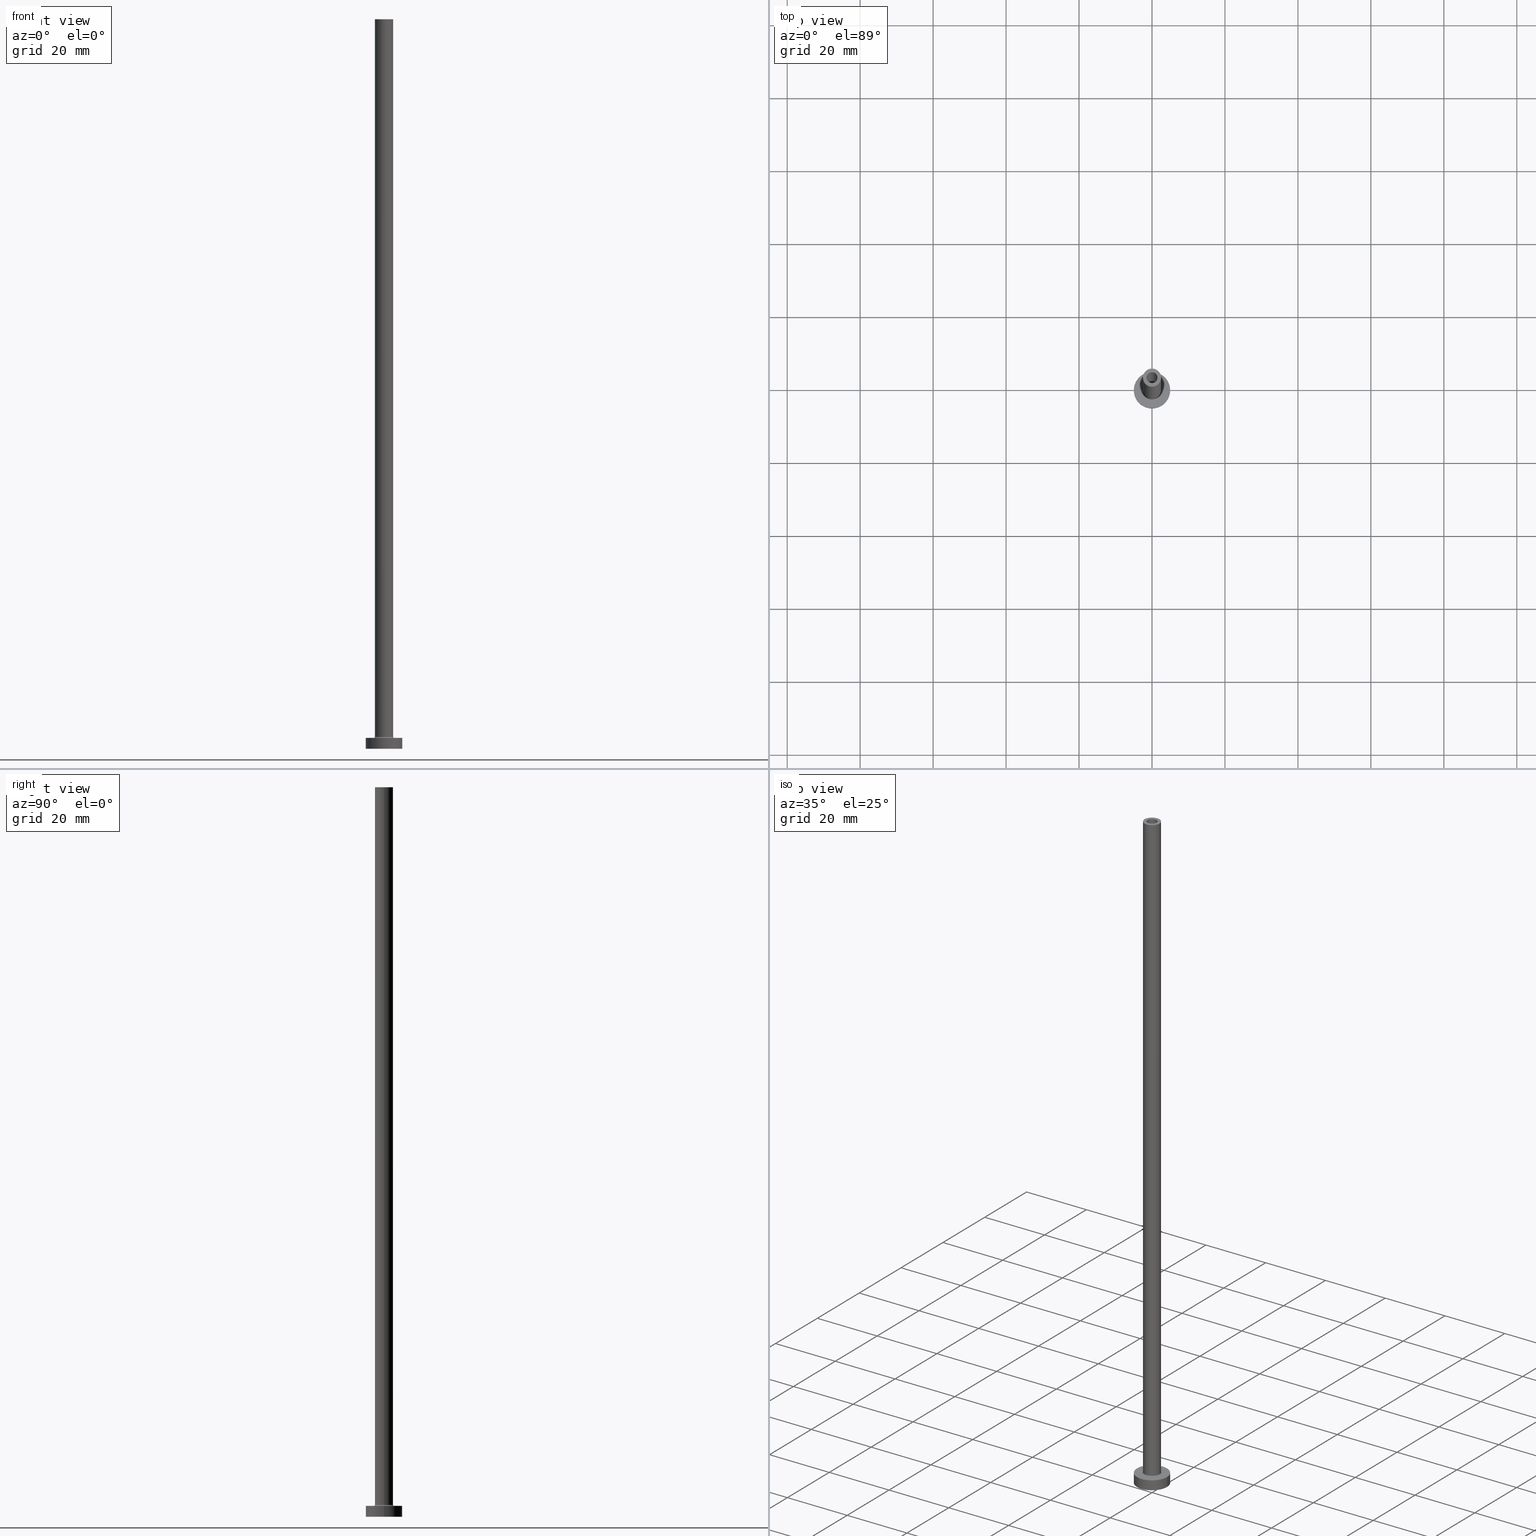
[diagram: canonical four-view strip — front | top / right | iso, engineering-drawing reading convention]
A machine part, canonical four-view strip (front | top / right | iso — engineering-drawing reading convention). The complete STEP part file that produces these views, byte-faithful:
ISO-10303-21;
HEADER;
FILE_DESCRIPTION (( 'STEP AP203' ),
    '1' );
FILE_NAME ('721f.STEP',
    '2023-02-13T18:01:36',
    ( '' ),
    ( '' ),
    'SwSTEP 2.0',
    'SolidWorks 2019',
    '' );
FILE_SCHEMA (( 'CONFIG_CONTROL_DESIGN' ));
ENDSEC;

DATA;
#1 = LINE ( 'NONE', #387, #257 ) ;
#2 = AXIS2_PLACEMENT_3D ( 'NONE', #383, #137, #210 ) ;
#3 = CC_DESIGN_APPROVAL ( #299, ( #334 ) ) ;
#4 = CARTESIAN_POINT ( 'NONE',  ( 0.000000000000000000, 0.000000000000000000, 200.0000000000000000 ) ) ;
#5 = PLANE ( 'NONE',  #280 ) ;
#6 = VERTEX_POINT ( 'NONE', #418 ) ;
#7 = DIRECTION ( 'NONE',  ( 1.000000000000000000, 0.000000000000000000, 0.000000000000000000 ) ) ;
#8 = CARTESIAN_POINT ( 'NONE',  ( 1.500000000000000222, 1.836970198721029934E-16, 155.0000000000000284 ) ) ;
#9 = DIRECTION ( 'NONE',  ( 0.000000000000000000, 0.000000000000000000, 1.000000000000000000 ) ) ;
#10 = ORIENTED_EDGE ( 'NONE', *, *, #12, .T. ) ;
#11 = AXIS2_PLACEMENT_3D ( 'NONE', #142, #225, #390 ) ;
#12 = EDGE_CURVE ( 'NONE', #100, #67, #64, .T. ) ;
#13 = DIRECTION ( 'NONE',  ( 0.000000000000000000, 0.000000000000000000, 1.000000000000000000 ) ) ;
#14 = ORIENTED_EDGE ( 'NONE', *, *, #48, .T. ) ;
#15 = EDGE_LOOP ( 'NONE', ( #78, #433, #50, #451 ) ) ;
#16 =( LENGTH_UNIT ( ) NAMED_UNIT ( * ) SI_UNIT ( .MILLI., .METRE. ) );
#17 = CC_DESIGN_PERSON_AND_ORGANIZATION_ASSIGNMENT ( #363, #439, ( #455 ) ) ;
#18 = CIRCLE ( 'NONE', #273, 2.500000000000000000 ) ;
#19 = DATE_AND_TIME ( #54, #139 ) ;
#20 = ORIENTED_EDGE ( 'NONE', *, *, #358, .T. ) ;
#21 = PERSON_AND_ORGANIZATION_ROLE ( 'creator' ) ;
#22 = PERSON_AND_ORGANIZATION ( #180, #365 ) ;
#23 = ORIENTED_EDGE ( 'NONE', *, *, #294, .F. ) ;
#24 = ORIENTED_EDGE ( 'NONE', *, *, #372, .T. ) ;
#25 = EDGE_CURVE ( 'NONE', #460, #264, #157, .T. ) ;
#26 = EDGE_LOOP ( 'NONE', ( #356, #406, #149, #131 ) ) ;
#27 = CARTESIAN_POINT ( 'NONE',  ( 2.799999999999999822, 0.000000000000000000, 2.999999999999998668 ) ) ;
#28 = ORIENTED_EDGE ( 'NONE', *, *, #233, .F. ) ;
#29 = DIRECTION ( 'NONE',  ( -0.000000000000000000, -0.000000000000000000, -1.000000000000000000 ) ) ;
#30 = VECTOR ( 'NONE', #58, 1000.000000000000000 ) ;
#31 = MANIFOLD_SOLID_BREP ( 'Odebrat vysunut�m4', #146 ) ;
#32 = DIRECTION ( 'NONE',  ( 0.000000000000000000, 0.000000000000000000, -1.000000000000000000 ) ) ;
#33 = ADVANCED_FACE ( 'NONE', ( #103, #249 ), #246, .F. ) ;
#34 = CARTESIAN_POINT ( 'NONE',  ( 5.000000000000000000, 6.123233995736766282E-16, 3.000000000000000000 ) ) ;
#35 = CARTESIAN_POINT ( 'NONE',  ( 0.000000000000000000, 0.000000000000000000, 200.0000000000000000 ) ) ;
#36 = FACE_OUTER_BOUND ( 'NONE', #254, .T. ) ;
#37 = DIRECTION ( 'NONE',  ( 0.000000000000000000, -1.000000000000000000, 0.000000000000000000 ) ) ;
#38 = CIRCLE ( 'NONE', #447, 1.650000000000000133 ) ;
#39 = DIRECTION ( 'NONE',  ( 0.000000000000000000, 0.000000000000000000, -1.000000000000000000 ) ) ;
#40 = CARTESIAN_POINT ( 'NONE',  ( 0.000000000000000000, 0.000000000000000000, 0.000000000000000000 ) ) ;
#41 = FACE_OUTER_BOUND ( 'NONE', #15, .T. ) ;
#42 = CC_DESIGN_PERSON_AND_ORGANIZATION_ASSIGNMENT ( #335, #159, ( #382 ) ) ;
#43 = DIRECTION ( 'NONE',  ( 1.000000000000000000, 0.000000000000000000, 0.000000000000000000 ) ) ;
#44 = ORIENTED_EDGE ( 'NONE', *, *, #117, .F. ) ;
#45 = LINE ( 'NONE', #147, #209 ) ;
#46 = ORIENTED_EDGE ( 'NONE', *, *, #269, .F. ) ;
#47 = AXIS2_PLACEMENT_3D ( 'NONE', #313, #182, #60 ) ;
#48 = EDGE_CURVE ( 'NONE', #69, #86, #18, .T. ) ;
#49 = FACE_OUTER_BOUND ( 'NONE', #386, .T. ) ;
#50 = ORIENTED_EDGE ( 'NONE', *, *, #118, .T. ) ;
#51 =( NAMED_UNIT ( * ) SI_UNIT ( $, .STERADIAN. ) SOLID_ANGLE_UNIT ( ) );
#52 = EDGE_CURVE ( 'NONE', #86, #67, #181, .T. ) ;
#53 = APPROVAL_ROLE ( '' ) ;
#54 = CALENDAR_DATE ( 2023, 13, 2 ) ;
#55 = AXIS2_PLACEMENT_3D ( 'NONE', #412, #458, #134 ) ;
#56 = CC_DESIGN_SECURITY_CLASSIFICATION ( #334, ( #382 ) ) ;
#57 = CARTESIAN_POINT ( 'NONE',  ( -2.500000000000000000, 0.000000000000000000, 200.0000000000000000 ) ) ;
#58 = DIRECTION ( 'NONE',  ( 0.000000000000000000, 0.000000000000000000, -1.000000000000000000 ) ) ;
#59 = DIRECTION ( 'NONE',  ( -0.000000000000000000, -0.000000000000000000, -1.000000000000000000 ) ) ;
#60 = DIRECTION ( 'NONE',  ( 1.000000000000000000, 0.000000000000000000, 0.000000000000000000 ) ) ;
#61 = ADVANCED_FACE ( 'NONE', ( #272 ), #411, .T. ) ;
#62 = DIRECTION ( 'NONE',  ( 1.000000000000000000, 0.000000000000000000, 0.000000000000000000 ) ) ;
#63 = CARTESIAN_POINT ( 'NONE',  ( 1.500000000000000222, 1.836970198721029934E-16, 200.0000000000000000 ) ) ;
#64 = CIRCLE ( 'NONE', #461, 2.500000000000000000 ) ;
#65 = CYLINDRICAL_SURFACE ( 'NONE', #138, 5.000000000000000000 ) ;
#66 = CARTESIAN_POINT ( 'NONE',  ( 0.000000000000000000, 0.000000000000000000, 200.0000000000000000 ) ) ;
#67 = VERTEX_POINT ( 'NONE', #305 ) ;
#68 = LINE ( 'NONE', #167, #83 ) ;
#69 = VERTEX_POINT ( 'NONE', #337 ) ;
#70 = PLANE ( 'NONE',  #102 ) ;
#71 = DIRECTION ( 'NONE',  ( -0.000000000000000000, -0.000000000000000000, -1.000000000000000000 ) ) ;
#72 = DIRECTION ( 'NONE',  ( -1.000000000000000000, 1.224646799147353207E-16, 0.000000000000000000 ) ) ;
#73 = AXIS2_PLACEMENT_3D ( 'NONE', #286, #230, #113 ) ;
#74 = APPLICATION_PROTOCOL_DEFINITION ( 'international standard', 'config_control_design', 1994, #228 ) ;
#75 = EDGE_LOOP ( 'NONE', ( #196, #152 ) ) ;
#76 = EDGE_CURVE ( 'NONE', #391, #115, #171, .T. ) ;
#77 = CARTESIAN_POINT ( 'NONE',  ( 0.000000000000000000, 0.000000000000000000, 200.0000000000000000 ) ) ;
#78 = ORIENTED_EDGE ( 'NONE', *, *, #104, .F. ) ;
#79 = COORDINATED_UNIVERSAL_TIME_OFFSET ( 1, 0, .AHEAD. ) ;
#80 = EDGE_LOOP ( 'NONE', ( #90, #185 ) ) ;
#81 = CARTESIAN_POINT ( 'NONE',  ( 0.000000000000000000, 0.000000000000000000, 155.0000000000000284 ) ) ;
#82 = CALENDAR_DATE ( 2023, 13, 2 ) ;
#83 = VECTOR ( 'NONE', #416, 1000.000000000000000 ) ;
#84 = ORIENTED_EDGE ( 'NONE', *, *, #52, .T. ) ;
#85 = CC_DESIGN_APPROVAL ( #262, ( #382 ) ) ;
#86 = VERTEX_POINT ( 'NONE', #340 ) ;
#87 = ADVANCED_FACE ( 'NONE', ( #170 ), #65, .T. ) ;
#88 = EDGE_CURVE ( 'NONE', #220, #361, #45, .T. ) ;
#89 = DATE_AND_TIME ( #82, #435 ) ;
#90 = ORIENTED_EDGE ( 'NONE', *, *, #25, .F. ) ;
#91 = APPROVAL_STATUS ( 'not_yet_approved' ) ;
#92 = APPROVAL_PERSON_ORGANIZATION ( #261, #400, #395 ) ;
#93 = EDGE_LOOP ( 'NONE', ( #285, #328, #449, #444 ) ) ;
#94 = ORIENTED_EDGE ( 'NONE', *, *, #160, .F. ) ;
#95 = ADVANCED_FACE ( 'NONE', ( #184, #429 ), #5, .F. ) ;
#96 = CIRCLE ( 'NONE', #128, 1.500000000000000222 ) ;
#97 = CARTESIAN_POINT ( 'NONE',  ( 0.000000000000000000, 0.000000000000000000, 159.6669047558312400 ) ) ;
#98 = DIRECTION ( 'NONE',  ( 0.000000000000000000, 0.000000000000000000, 1.000000000000000000 ) ) ;
#99 = DIRECTION ( 'NONE',  ( -0.000000000000000000, -0.000000000000000000, -1.000000000000000000 ) ) ;
#100 = VERTEX_POINT ( 'NONE', #324 ) ;
#101 = CARTESIAN_POINT ( 'NONE',  ( 0.000000000000000000, 0.000000000000000000, 3.299999999999997158 ) ) ;
#102 = AXIS2_PLACEMENT_3D ( 'NONE', #77, #397, #223 ) ;
#103 = FACE_BOUND ( 'NONE', #200, .T. ) ;
#104 = EDGE_CURVE ( 'NONE', #67, #266, #199, .T. ) ;
#105 = CYLINDRICAL_SURFACE ( 'NONE', #165, 1.500000000000000222 ) ;
#106 = PLANE ( 'NONE',  #238 ) ;
#107 = CARTESIAN_POINT ( 'NONE',  ( 0.000000000000000000, 0.000000000000000000, 3.000000000000000000 ) ) ;
#108 = DIRECTION ( 'NONE',  ( 1.224646799147353207E-16, 1.000000000000000000, -0.000000000000000000 ) ) ;
#109 = CARTESIAN_POINT ( 'NONE',  ( 0.000000000000000000, 0.000000000000000000, 155.0000000000000284 ) ) ;
#110 = FACE_OUTER_BOUND ( 'NONE', #191, .T. ) ;
#111 = CIRCLE ( 'NONE', #414, 5.000000000000000000 ) ;
#112 = LOCAL_TIME ( 19, 1, 36.00000000000000000, #79 ) ;
#113 = DIRECTION ( 'NONE',  ( 1.000000000000000000, 0.000000000000000000, 0.000000000000000000 ) ) ;
#114 = CARTESIAN_POINT ( 'NONE',  ( -1.650000000000000133, 0.000000000000000000, 0.000000000000000000 ) ) ;
#115 = VERTEX_POINT ( 'NONE', #114 ) ;
#116 = CARTESIAN_POINT ( 'NONE',  ( 0.000000000000000000, 0.000000000000000000, 155.0000000000000284 ) ) ;
#117 = EDGE_CURVE ( 'NONE', #236, #220, #247, .T. ) ;
#118 = EDGE_CURVE ( 'NONE', #100, #231, #369, .T. ) ;
#119 = CIRCLE ( 'NONE', #164, 2.799999999999999822 ) ;
#120 = ADVANCED_FACE ( 'NONE', ( #255, #357 ), #106, .T. ) ;
#121 = APPROVAL_ROLE ( '' ) ;
#122 = CC_DESIGN_PERSON_AND_ORGANIZATION_ASSIGNMENT ( #22, #21, ( #382 ) ) ;
#123 = AXIS2_PLACEMENT_3D ( 'NONE', #177, #378, #453 ) ;
#124 = AXIS2_PLACEMENT_3D ( 'NONE', #325, #71, #218 ) ;
#125 = ORIENTED_EDGE ( 'NONE', *, *, #358, .F. ) ;
#126 = APPROVAL_DATE_TIME ( #235, #299 ) ;
#127 = ORIENTED_EDGE ( 'NONE', *, *, #194, .T. ) ;
#128 = AXIS2_PLACEMENT_3D ( 'NONE', #389, #427, #43 ) ;
#129 = DIRECTION ( 'NONE',  ( 1.000000000000000000, 0.000000000000000000, 0.000000000000000000 ) ) ;
#130 = CYLINDRICAL_SURFACE ( 'NONE', #381, 2.500000000000000000 ) ;
#131 = ORIENTED_EDGE ( 'NONE', *, *, #232, .F. ) ;
#132 = DIRECTION ( 'NONE',  ( 1.000000000000000000, 0.000000000000000000, -0.000000000000000000 ) ) ;
#133 = EDGE_CURVE ( 'NONE', #361, #6, #111, .T. ) ;
#134 = DIRECTION ( 'NONE',  ( -1.000000000000000000, 0.000000000000000000, 0.000000000000000000 ) ) ;
#135 = PRODUCT_RELATED_PRODUCT_CATEGORY ( 'detail', '', ( #179 ) ) ;
#136 = CARTESIAN_POINT ( 'NONE',  ( 0.000000000000000000, 0.000000000000000000, 3.299999999999997158 ) ) ;
#137 = DIRECTION ( 'NONE',  ( 0.000000000000000000, 0.000000000000000000, 1.000000000000000000 ) ) ;
#138 = AXIS2_PLACEMENT_3D ( 'NONE', #144, #360, #316 ) ;
#139 = LOCAL_TIME ( 19, 1, 36.00000000000000000, #450 ) ;
#140 = FACE_BOUND ( 'NONE', #80, .T. ) ;
#141 = LINE ( 'NONE', #415, #401 ) ;
#142 = CARTESIAN_POINT ( 'NONE',  ( 0.000000000000000000, 0.000000000000000000, 3.000000000000000000 ) ) ;
#143 = DIRECTION ( 'NONE',  ( 1.000000000000000000, 0.000000000000000000, 0.000000000000000000 ) ) ;
#144 = CARTESIAN_POINT ( 'NONE',  ( 0.000000000000000000, 0.000000000000000000, 3.000000000000000000 ) ) ;
#145 = EDGE_LOOP ( 'NONE', ( #258, #168 ) ) ;
#146 = CLOSED_SHELL ( 'NONE', ( #329, #208, #256, #452, #61, #87, #120, #33, #312, #169, #188, #198, #95, #321 ) ) ;
#147 = CARTESIAN_POINT ( 'NONE',  ( 5.000000000000000000, 6.123233995736766282E-16, 3.000000000000000000 ) ) ;
#148 = AXIS2_PLACEMENT_3D ( 'NONE', #346, #241, #205 ) ;
#149 = ORIENTED_EDGE ( 'NONE', *, *, #133, .T. ) ;
#150 = CALENDAR_DATE ( 2023, 13, 2 ) ;
#151 = DIRECTION ( 'NONE',  ( 1.000000000000000000, 0.000000000000000000, 0.000000000000000000 ) ) ;
#152 = ORIENTED_EDGE ( 'NONE', *, *, #297, .T. ) ;
#153 = CARTESIAN_POINT ( 'NONE',  ( 5.000000000000000000, 6.123233995736766282E-16, 0.000000000000000000 ) ) ;
#154 = VERTEX_POINT ( 'NONE', #8 ) ;
#155 = ORIENTED_EDGE ( 'NONE', *, *, #295, .F. ) ;
#156 = COORDINATED_UNIVERSAL_TIME_OFFSET ( 1, 0, .AHEAD. ) ;
#157 = CIRCLE ( 'NONE', #413, 1.500000000000000222 ) ;
#158 = AXIS2_PLACEMENT_3D ( 'NONE', #287, #37, #39 ) ;
#159 = PERSON_AND_ORGANIZATION_ROLE ( 'design_supplier' ) ;
#160 = EDGE_CURVE ( 'NONE', #310, #391, #1, .T. ) ;
#161 = APPROVAL_DATE_TIME ( #405, #262 ) ;
#162 = ORIENTED_EDGE ( 'NONE', *, *, #269, .T. ) ;
#163 = AXIS2_PLACEMENT_3D ( 'NONE', #349, #343, #132 ) ;
#164 = AXIS2_PLACEMENT_3D ( 'NONE', #107, #402, #7 ) ;
#165 = AXIS2_PLACEMENT_3D ( 'NONE', #66, #32, #250 ) ;
#166 = DIRECTION ( 'NONE',  ( -0.000000000000000000, -0.000000000000000000, -1.000000000000000000 ) ) ;
#167 = CARTESIAN_POINT ( 'NONE',  ( 1.500000000000000222, 1.836970198721029934E-16, 200.0000000000000000 ) ) ;
#168 = ORIENTED_EDGE ( 'NONE', *, *, #133, .F. ) ;
#169 = ADVANCED_FACE ( 'NONE', ( #140, #110 ), #70, .T. ) ;
#170 = FACE_OUTER_BOUND ( 'NONE', #336, .T. ) ;
#171 = CIRCLE ( 'NONE', #333, 1.650000000000000133 ) ;
#172 = CARTESIAN_POINT ( 'NONE',  ( -1.500000000000000222, 0.000000000000000000, 155.0000000000000284 ) ) ;
#173 = CC_DESIGN_APPROVAL ( #400, ( #455 ) ) ;
#174 = ORIENTED_EDGE ( 'NONE', *, *, #194, .F. ) ;
#175 = CYLINDRICAL_SURFACE ( 'NONE', #55, 1.500000000000000222 ) ;
#176 = EDGE_LOOP ( 'NONE', ( #300, #318, #222, #366 ) ) ;
#177 = CARTESIAN_POINT ( 'NONE',  ( 0.000000000000000000, 0.000000000000000000, 3.000000000000000000 ) ) ;
#178 = ORIENTED_EDGE ( 'NONE', *, *, #339, .T. ) ;
#179 = PRODUCT ( '721f', '721f', '', ( #319 ) ) ;
#180 = PERSON ( 'NEUR�EN�', 'NEUR�EN�', 'NEUR�EN�', ('NEUR�EN�'), ('NEUR�EN�'), ('NEUR�EN�') ) ;
#181 = LINE ( 'NONE', #57, #421 ) ;
#182 = DIRECTION ( 'NONE',  ( 0.000000000000000000, 0.000000000000000000, 1.000000000000000000 ) ) ;
#183 = AXIS2_PLACEMENT_3D ( 'NONE', #282, #426, #263 ) ;
#184 = FACE_BOUND ( 'NONE', #237, .T. ) ;
#185 = ORIENTED_EDGE ( 'NONE', *, *, #372, .F. ) ;
#186 =( NAMED_UNIT ( * ) PLANE_ANGLE_UNIT ( ) SI_UNIT ( $, .RADIAN. ) );
#187 = CARTESIAN_POINT ( 'NONE',  ( 0.000000000000000000, 0.000000000000000000, 3.000000000000000000 ) ) ;
#188 = ADVANCED_FACE ( 'NONE', ( #41 ), #364, .F. ) ;
#189 = DIRECTION ( 'NONE',  ( 0.000000000000000000, 0.000000000000000000, 1.000000000000000000 ) ) ;
#190 = DIRECTION ( 'NONE',  ( 0.000000000000000000, 0.000000000000000000, 1.000000000000000000 ) ) ;
#191 = EDGE_LOOP ( 'NONE', ( #352, #14 ) ) ;
#192 = DIRECTION ( 'NONE',  ( -0.000000000000000000, -0.000000000000000000, -1.000000000000000000 ) ) ;
#193 = ORIENTED_EDGE ( 'NONE', *, *, #420, .T. ) ;
#194 = EDGE_CURVE ( 'NONE', #304, #154, #307, .T. ) ;
#195 = CARTESIAN_POINT ( 'NONE',  ( -1.500000000000000222, 0.000000000000000000, 200.0000000000000000 ) ) ;
#196 = ORIENTED_EDGE ( 'NONE', *, *, #342, .T. ) ;
#197 = APPLICATION_CONTEXT ( 'configuration controlled 3d designs of mechanical parts and assemblies' ) ;
#198 = ADVANCED_FACE ( 'NONE', ( #217 ), #320, .F. ) ;
#199 = CIRCLE ( 'NONE', #290, 0.2999999999999999334 ) ;
#200 = EDGE_LOOP ( 'NONE', ( #125, #323 ) ) ;
#201 = SHAPE_DEFINITION_REPRESENTATION ( #388, #213 ) ;
#202 = VECTOR ( 'NONE', #99, 1000.000000000000000 ) ;
#203 = LOCAL_TIME ( 19, 1, 36.00000000000000000, #446 ) ;
#204 = DATE_TIME_ROLE ( 'creation_date' ) ;
#205 = DIRECTION ( 'NONE',  ( -1.000000000000000000, 0.000000000000000000, 0.000000000000000000 ) ) ;
#206 = CARTESIAN_POINT ( 'NONE',  ( 0.000000000000000000, 0.000000000000000000, 155.0000000000000284 ) ) ;
#207 = DIRECTION ( 'NONE',  ( 1.000000000000000000, 0.000000000000000000, 0.000000000000000000 ) ) ;
#208 = ADVANCED_FACE ( 'NONE', ( #350 ), #279, .F. ) ;
#209 = VECTOR ( 'NONE', #192, 1000.000000000000000 ) ;
#210 = DIRECTION ( 'NONE',  ( 1.000000000000000000, 0.000000000000000000, 0.000000000000000000 ) ) ;
#211 = DIRECTION ( 'NONE',  ( 0.000000000000000000, 0.000000000000000000, 1.000000000000000000 ) ) ;
#212 = EDGE_CURVE ( 'NONE', #310, #288, #38, .T. ) ;
#213 = ADVANCED_BREP_SHAPE_REPRESENTATION ( '721f', ( #31, #308 ), #302 ) ;
#214 = DIRECTION ( 'NONE',  ( 0.000000000000000000, 0.000000000000000000, -1.000000000000000000 ) ) ;
#215 = DESIGN_CONTEXT ( 'detailed design', #197, 'design' ) ;
#216 = LINE ( 'NONE', #306, #202 ) ;
#217 = FACE_OUTER_BOUND ( 'NONE', #430, .T. ) ;
#218 = DIRECTION ( 'NONE',  ( -1.000000000000000000, 0.000000000000000000, 0.000000000000000000 ) ) ;
#219 = CIRCLE ( 'NONE', #123, 5.000000000000000000 ) ;
#220 = VERTEX_POINT ( 'NONE', #34 ) ;
#221 = DIRECTION ( 'NONE',  ( 0.000000000000000000, 0.000000000000000000, 1.000000000000000000 ) ) ;
#222 = ORIENTED_EDGE ( 'NONE', *, *, #342, .F. ) ;
#223 = DIRECTION ( 'NONE',  ( 1.000000000000000000, 0.000000000000000000, -0.000000000000000000 ) ) ;
#224 = DIRECTION ( 'NONE',  ( 0.000000000000000000, 0.000000000000000000, -1.000000000000000000 ) ) ;
#225 = DIRECTION ( 'NONE',  ( 0.000000000000000000, 0.000000000000000000, 1.000000000000000000 ) ) ;
#226 = EDGE_LOOP ( 'NONE', ( #438, #408 ) ) ;
#227 = EDGE_CURVE ( 'NONE', #220, #236, #219, .T. ) ;
#228 = APPLICATION_CONTEXT ( 'configuration controlled 3d designs of mechanical parts and assemblies' ) ;
#229 = CIRCLE ( 'NONE', #73, 1.650000000000000133 ) ;
#230 = DIRECTION ( 'NONE',  ( -0.000000000000000000, -0.000000000000000000, -1.000000000000000000 ) ) ;
#231 = VERTEX_POINT ( 'NONE', #27 ) ;
#232 = EDGE_CURVE ( 'NONE', #236, #6, #141, .T. ) ;
#233 = EDGE_CURVE ( 'NONE', #264, #154, #68, .T. ) ;
#234 = PERSON_AND_ORGANIZATION_ROLE ( 'classification_officer' ) ;
#235 = DATE_AND_TIME ( #373, #203 ) ;
#236 = VERTEX_POINT ( 'NONE', #239 ) ;
#237 = EDGE_LOOP ( 'NONE', ( #127, #193 ) ) ;
#238 = AXIS2_PLACEMENT_3D ( 'NONE', #187, #13, #259 ) ;
#239 = CARTESIAN_POINT ( 'NONE',  ( -5.000000000000000000, 0.000000000000000000, 3.000000000000000000 ) ) ;
#240 = ORIENTED_EDGE ( 'NONE', *, *, #48, .F. ) ;
#241 = DIRECTION ( 'NONE',  ( -0.000000000000000000, -0.000000000000000000, -1.000000000000000000 ) ) ;
#242 = DIRECTION ( 'NONE',  ( -1.000000000000000000, 0.000000000000000000, 0.000000000000000000 ) ) ;
#243 = EDGE_CURVE ( 'NONE', #6, #361, #407, .T. ) ;
#244 = CARTESIAN_POINT ( 'NONE',  ( 0.000000000000000000, 0.000000000000000000, 200.0000000000000000 ) ) ;
#245 = DIRECTION ( 'NONE',  ( -1.000000000000000000, 0.000000000000000000, 0.000000000000000000 ) ) ;
#246 = PLANE ( 'NONE',  #163 ) ;
#247 = CIRCLE ( 'NONE', #11, 5.000000000000000000 ) ;
#248 = DIRECTION ( 'NONE',  ( 0.000000000000000000, 0.000000000000000000, 1.000000000000000000 ) ) ;
#249 = FACE_OUTER_BOUND ( 'NONE', #145, .T. ) ;
#250 = DIRECTION ( 'NONE',  ( -1.000000000000000000, 0.000000000000000000, 0.000000000000000000 ) ) ;
#251 = EDGE_LOOP ( 'NONE', ( #457, #326, #174, #155 ) ) ;
#252 = CARTESIAN_POINT ( 'NONE',  ( 0.000000000000000000, 0.000000000000000000, 0.000000000000000000 ) ) ;
#253 = CARTESIAN_POINT ( 'NONE',  ( 1.650000000000000133, 2.020667218593132508E-16, 0.000000000000000000 ) ) ;
#254 = EDGE_LOOP ( 'NONE', ( #46, #23, #84, #178 ) ) ;
#255 = FACE_BOUND ( 'NONE', #75, .T. ) ;
#256 = ADVANCED_FACE ( 'NONE', ( #425 ), #374, .F. ) ;
#257 = VECTOR ( 'NONE', #432, 1000.000000000000000 ) ;
#258 = ORIENTED_EDGE ( 'NONE', *, *, #243, .F. ) ;
#259 = DIRECTION ( 'NONE',  ( 1.000000000000000000, 0.000000000000000000, -0.000000000000000000 ) ) ;
#260 = EDGE_LOOP ( 'NONE', ( #28, #24, #303, #292 ) ) ;
#261 = PERSON_AND_ORGANIZATION ( #180, #365 ) ;
#262 = APPROVAL ( #91, 'NEUR�EN�' ) ;
#263 = DIRECTION ( 'NONE',  ( 1.000000000000000000, 0.000000000000000000, 0.000000000000000000 ) ) ;
#264 = VERTEX_POINT ( 'NONE', #63 ) ;
#265 = APPROVAL_DATE_TIME ( #293, #400 ) ;
#266 = VERTEX_POINT ( 'NONE', #419 ) ;
#267 = APPROVAL_STATUS ( 'not_yet_approved' ) ;
#268 = AXIS2_PLACEMENT_3D ( 'NONE', #348, #29, #345 ) ;
#269 = EDGE_CURVE ( 'NONE', #69, #100, #216, .T. ) ;
#270 = AXIS2_PLACEMENT_3D ( 'NONE', #116, #9, #322 ) ;
#271 = ORIENTED_EDGE ( 'NONE', *, *, #445, .F. ) ;
#272 = FACE_OUTER_BOUND ( 'NONE', #26, .T. ) ;
#273 = AXIS2_PLACEMENT_3D ( 'NONE', #35, #375, #379 ) ;
#274 = AXIS2_PLACEMENT_3D ( 'NONE', #97, #214, #242 ) ;
#275 = CARTESIAN_POINT ( 'NONE',  ( -1.650000000000000133, 0.000000000000000000, 155.0000000000000284 ) ) ;
#276 = DIRECTION ( 'NONE',  ( 0.000000000000000000, 0.000000000000000000, 1.000000000000000000 ) ) ;
#277 = DIRECTION ( 'NONE',  ( 1.000000000000000000, 0.000000000000000000, 0.000000000000000000 ) ) ;
#278 = CARTESIAN_POINT ( 'NONE',  ( 0.000000000000000000, 0.000000000000000000, 0.000000000000000000 ) ) ;
#279 = CYLINDRICAL_SURFACE ( 'NONE', #274, 1.650000000000000133 ) ;
#280 = AXIS2_PLACEMENT_3D ( 'NONE', #355, #221, #284 ) ;
#281 = DIRECTION ( 'NONE',  ( -1.000000000000000000, 0.000000000000000000, 0.000000000000000000 ) ) ;
#282 = CARTESIAN_POINT ( 'NONE',  ( 0.000000000000000000, 0.000000000000000000, 3.299999999999997158 ) ) ;
#283 = LINE ( 'NONE', #431, #330 ) ;
#284 = DIRECTION ( 'NONE',  ( 1.000000000000000000, 0.000000000000000000, -0.000000000000000000 ) ) ;
#285 = ORIENTED_EDGE ( 'NONE', *, *, #445, .T. ) ;
#286 = CARTESIAN_POINT ( 'NONE',  ( 0.000000000000000000, 0.000000000000000000, 0.000000000000000000 ) ) ;
#287 = CARTESIAN_POINT ( 'NONE',  ( 2.799999999999999822, 0.000000000000000000, 3.299999999999997158 ) ) ;
#288 = VERTEX_POINT ( 'NONE', #275 ) ;
#289 = DIRECTION ( 'NONE',  ( 1.000000000000000000, 0.000000000000000000, 0.000000000000000000 ) ) ;
#290 = AXIS2_PLACEMENT_3D ( 'NONE', #394, #108, #72 ) ;
#291 = CARTESIAN_POINT ( 'NONE',  ( 0.000000000000000000, 0.000000000000000000, 159.6669047558312400 ) ) ;
#292 = ORIENTED_EDGE ( 'NONE', *, *, #420, .F. ) ;
#293 = DATE_AND_TIME ( #150, #112 ) ;
#294 = EDGE_CURVE ( 'NONE', #86, #69, #434, .T. ) ;
#295 = EDGE_CURVE ( 'NONE', #460, #304, #341, .T. ) ;
#296 = SECURITY_CLASSIFICATION_LEVEL ( 'unclassified' ) ;
#297 = EDGE_CURVE ( 'NONE', #266, #231, #301, .T. ) ;
#298 = DATE_TIME_ROLE ( 'classification_date' ) ;
#299 = APPROVAL ( #409, 'NEUR�EN�' ) ;
#300 = ORIENTED_EDGE ( 'NONE', *, *, #339, .F. ) ;
#301 = CIRCLE ( 'NONE', #268, 2.799999999999999822 ) ;
#302 =( GEOMETRIC_REPRESENTATION_CONTEXT ( 3 ) GLOBAL_UNCERTAINTY_ASSIGNED_CONTEXT ( ( #347 ) ) GLOBAL_UNIT_ASSIGNED_CONTEXT ( ( #16, #186, #51 ) ) REPRESENTATION_CONTEXT ( 'NONE', 'WORKASPACE' ) );
#303 = ORIENTED_EDGE ( 'NONE', *, *, #295, .T. ) ;
#304 = VERTEX_POINT ( 'NONE', #172 ) ;
#305 = CARTESIAN_POINT ( 'NONE',  ( -2.500000000000000000, 0.000000000000000000, 3.299999999999997158 ) ) ;
#306 = CARTESIAN_POINT ( 'NONE',  ( 2.500000000000000000, 3.061616997868383141E-16, 200.0000000000000000 ) ) ;
#307 = CIRCLE ( 'NONE', #353, 1.500000000000000222 ) ;
#308 = AXIS2_PLACEMENT_3D ( 'NONE', #40, #189, #289 ) ;
#309 = CARTESIAN_POINT ( 'NONE',  ( 1.650000000000000133, 2.020667218593132508E-16, 155.0000000000000284 ) ) ;
#310 = VERTEX_POINT ( 'NONE', #309 ) ;
#311 = DIRECTION ( 'NONE',  ( -0.000000000000000000, -0.000000000000000000, -1.000000000000000000 ) ) ;
#312 = ADVANCED_FACE ( 'NONE', ( #36 ), #130, .T. ) ;
#313 = CARTESIAN_POINT ( 'NONE',  ( 0.000000000000000000, 0.000000000000000000, 0.000000000000000000 ) ) ;
#314 = AXIS2_PLACEMENT_3D ( 'NONE', #101, #248, #376 ) ;
#315 = CARTESIAN_POINT ( 'NONE',  ( 0.000000000000000000, 0.000000000000000000, 3.299999999999997158 ) ) ;
#316 = DIRECTION ( 'NONE',  ( -1.000000000000000000, 0.000000000000000000, 0.000000000000000000 ) ) ;
#317 = DIRECTION ( 'NONE',  ( 0.000000000000000000, 0.000000000000000000, 1.000000000000000000 ) ) ;
#318 = ORIENTED_EDGE ( 'NONE', *, *, #104, .T. ) ;
#319 = MECHANICAL_CONTEXT ( 'NONE', #228, 'mechanical' ) ;
#320 = CYLINDRICAL_SURFACE ( 'NONE', #423, 1.650000000000000133 ) ;
#321 = ADVANCED_FACE ( 'NONE', ( #377 ), #105, .F. ) ;
#322 = DIRECTION ( 'NONE',  ( 1.000000000000000000, 0.000000000000000000, 0.000000000000000000 ) ) ;
#323 = ORIENTED_EDGE ( 'NONE', *, *, #76, .F. ) ;
#324 = CARTESIAN_POINT ( 'NONE',  ( 2.500000000000000000, 3.061616997868383141E-16, 3.299999999999997158 ) ) ;
#325 = CARTESIAN_POINT ( 'NONE',  ( 0.000000000000000000, 0.000000000000000000, 200.0000000000000000 ) ) ;
#326 = ORIENTED_EDGE ( 'NONE', *, *, #233, .T. ) ;
#327 = PERSON_AND_ORGANIZATION ( #180, #365 ) ;
#328 = ORIENTED_EDGE ( 'NONE', *, *, #160, .T. ) ;
#329 = ADVANCED_FACE ( 'NONE', ( #385 ), #175, .F. ) ;
#330 = VECTOR ( 'NONE', #224, 1000.000000000000000 ) ;
#331 = ORIENTED_EDGE ( 'NONE', *, *, #232, .T. ) ;
#332 = CC_DESIGN_PERSON_AND_ORGANIZATION_ASSIGNMENT ( #441, #367, ( #179 ) ) ;
#333 = AXIS2_PLACEMENT_3D ( 'NONE', #278, #166, #207 ) ;
#334 = SECURITY_CLASSIFICATION ( '', '', #296 ) ;
#335 = PERSON_AND_ORGANIZATION ( #180, #365 ) ;
#336 = EDGE_LOOP ( 'NONE', ( #440, #44, #331, #384 ) ) ;
#337 = CARTESIAN_POINT ( 'NONE',  ( 2.500000000000000000, 3.061616997868383141E-16, 200.0000000000000000 ) ) ;
#338 = DIRECTION ( 'NONE',  ( 0.000000000000000000, 0.000000000000000000, 1.000000000000000000 ) ) ;
#339 = EDGE_CURVE ( 'NONE', #67, #100, #362, .T. ) ;
#340 = CARTESIAN_POINT ( 'NONE',  ( -2.500000000000000000, 0.000000000000000000, 200.0000000000000000 ) ) ;
#341 = LINE ( 'NONE', #456, #30 ) ;
#342 = EDGE_CURVE ( 'NONE', #231, #266, #119, .T. ) ;
#343 = DIRECTION ( 'NONE',  ( 0.000000000000000000, 0.000000000000000000, 1.000000000000000000 ) ) ;
#344 = AXIS2_PLACEMENT_3D ( 'NONE', #109, #354, #143 ) ;
#345 = DIRECTION ( 'NONE',  ( 1.000000000000000000, 0.000000000000000000, 0.000000000000000000 ) ) ;
#346 = CARTESIAN_POINT ( 'NONE',  ( 0.000000000000000000, 0.000000000000000000, 3.000000000000000000 ) ) ;
#347 = UNCERTAINTY_MEASURE_WITH_UNIT (LENGTH_MEASURE( 1.000000000000000082E-05 ), #16, 'distance_accuracy_value', 'NONE');
#348 = CARTESIAN_POINT ( 'NONE',  ( 0.000000000000000000, 0.000000000000000000, 3.000000000000000000 ) ) ;
#349 = CARTESIAN_POINT ( 'NONE',  ( 0.000000000000000000, 0.000000000000000000, 0.000000000000000000 ) ) ;
#350 = FACE_OUTER_BOUND ( 'NONE', #93, .T. ) ;
#351 = DIRECTION ( 'NONE',  ( 0.000000000000000000, 0.000000000000000000, -1.000000000000000000 ) ) ;
#352 = ORIENTED_EDGE ( 'NONE', *, *, #294, .T. ) ;
#353 = AXIS2_PLACEMENT_3D ( 'NONE', #81, #190, #437 ) ;
#354 = DIRECTION ( 'NONE',  ( 0.000000000000000000, 0.000000000000000000, 1.000000000000000000 ) ) ;
#355 = CARTESIAN_POINT ( 'NONE',  ( 0.000000000000000000, 0.000000000000000000, 155.0000000000000284 ) ) ;
#356 = ORIENTED_EDGE ( 'NONE', *, *, #227, .F. ) ;
#357 = FACE_OUTER_BOUND ( 'NONE', #226, .T. ) ;
#358 = EDGE_CURVE ( 'NONE', #115, #391, #229, .T. ) ;
#359 = CYLINDRICAL_SURFACE ( 'NONE', #124, 2.500000000000000000 ) ;
#360 = DIRECTION ( 'NONE',  ( -0.000000000000000000, -0.000000000000000000, -1.000000000000000000 ) ) ;
#361 = VERTEX_POINT ( 'NONE', #153 ) ;
#362 = CIRCLE ( 'NONE', #314, 2.500000000000000000 ) ;
#363 = PERSON_AND_ORGANIZATION ( #180, #365 ) ;
#364 = TOROIDAL_SURFACE ( 'NONE', #183, 2.799999999999999822, 0.2999999999999999889 ) ;
#365 = ORGANIZATION ( 'NEUR�EN�', 'NEUR�EN�', '' ) ;
#366 = ORIENTED_EDGE ( 'NONE', *, *, #118, .F. ) ;
#367 = PERSON_AND_ORGANIZATION_ROLE ( 'design_owner' ) ;
#368 = EDGE_CURVE ( 'NONE', #288, #115, #283, .T. ) ;
#369 = CIRCLE ( 'NONE', #158, 0.2999999999999999334 ) ;
#370 = CC_DESIGN_DATE_AND_TIME_ASSIGNMENT ( #89, #204, ( #455 ) ) ;
#371 = PERSON_AND_ORGANIZATION ( #180, #365 ) ;
#372 = EDGE_CURVE ( 'NONE', #264, #460, #96, .T. ) ;
#373 = CALENDAR_DATE ( 2023, 13, 2 ) ;
#374 = TOROIDAL_SURFACE ( 'NONE', #442, 2.799999999999999822, 0.2999999999999999889 ) ;
#375 = DIRECTION ( 'NONE',  ( 0.000000000000000000, 0.000000000000000000, 1.000000000000000000 ) ) ;
#376 = DIRECTION ( 'NONE',  ( 1.000000000000000000, 0.000000000000000000, 0.000000000000000000 ) ) ;
#377 = FACE_OUTER_BOUND ( 'NONE', #260, .T. ) ;
#378 = DIRECTION ( 'NONE',  ( 0.000000000000000000, 0.000000000000000000, 1.000000000000000000 ) ) ;
#379 = DIRECTION ( 'NONE',  ( 1.000000000000000000, 0.000000000000000000, 0.000000000000000000 ) ) ;
#380 = CC_DESIGN_DATE_AND_TIME_ASSIGNMENT ( #19, #298, ( #334 ) ) ;
#381 = AXIS2_PLACEMENT_3D ( 'NONE', #4, #459, #281 ) ;
#382 = PRODUCT_DEFINITION_FORMATION_WITH_SPECIFIED_SOURCE ( 'LIBOVOLN�', '', #179, .NOT_KNOWN. ) ;
#383 = CARTESIAN_POINT ( 'NONE',  ( 0.000000000000000000, 0.000000000000000000, 200.0000000000000000 ) ) ;
#384 = ORIENTED_EDGE ( 'NONE', *, *, #243, .T. ) ;
#385 = FACE_OUTER_BOUND ( 'NONE', #251, .T. ) ;
#386 = EDGE_LOOP ( 'NONE', ( #240, #162, #10, #404 ) ) ;
#387 = CARTESIAN_POINT ( 'NONE',  ( 1.650000000000000133, 2.020667218593132508E-16, 159.6669047558312400 ) ) ;
#388 = PRODUCT_DEFINITION_SHAPE ( 'NONE', 'NONE',  #455 ) ;
#389 = CARTESIAN_POINT ( 'NONE',  ( 0.000000000000000000, 0.000000000000000000, 200.0000000000000000 ) ) ;
#390 = DIRECTION ( 'NONE',  ( 1.000000000000000000, 0.000000000000000000, 0.000000000000000000 ) ) ;
#391 = VERTEX_POINT ( 'NONE', #253 ) ;
#392 = CIRCLE ( 'NONE', #270, 1.500000000000000222 ) ;
#393 = EDGE_LOOP ( 'NONE', ( #271, #396 ) ) ;
#394 = CARTESIAN_POINT ( 'NONE',  ( -2.799999999999999822, 3.429011037612588783E-16, 3.299999999999997158 ) ) ;
#395 = APPROVAL_ROLE ( '' ) ;
#396 = ORIENTED_EDGE ( 'NONE', *, *, #212, .F. ) ;
#397 = DIRECTION ( 'NONE',  ( 0.000000000000000000, 0.000000000000000000, 1.000000000000000000 ) ) ;
#398 = COORDINATED_UNIVERSAL_TIME_OFFSET ( 1, 0, .AHEAD. ) ;
#399 = ORIENTED_EDGE ( 'NONE', *, *, #368, .T. ) ;
#400 = APPROVAL ( #267, 'NEUR�EN�' ) ;
#401 = VECTOR ( 'NONE', #311, 1000.000000000000000 ) ;
#402 = DIRECTION ( 'NONE',  ( -0.000000000000000000, -0.000000000000000000, -1.000000000000000000 ) ) ;
#403 = APPROVAL_PERSON_ORGANIZATION ( #371, #299, #53 ) ;
#404 = ORIENTED_EDGE ( 'NONE', *, *, #52, .F. ) ;
#405 = DATE_AND_TIME ( #443, #424 ) ;
#406 = ORIENTED_EDGE ( 'NONE', *, *, #88, .T. ) ;
#407 = CIRCLE ( 'NONE', #47, 5.000000000000000000 ) ;
#408 = ORIENTED_EDGE ( 'NONE', *, *, #227, .T. ) ;
#409 = APPROVAL_STATUS ( 'not_yet_approved' ) ;
#410 = PERSON_AND_ORGANIZATION ( #180, #365 ) ;
#411 = CYLINDRICAL_SURFACE ( 'NONE', #148, 5.000000000000000000 ) ;
#412 = CARTESIAN_POINT ( 'NONE',  ( 0.000000000000000000, 0.000000000000000000, 200.0000000000000000 ) ) ;
#413 = AXIS2_PLACEMENT_3D ( 'NONE', #244, #211, #422 ) ;
#414 = AXIS2_PLACEMENT_3D ( 'NONE', #252, #317, #151 ) ;
#415 = CARTESIAN_POINT ( 'NONE',  ( -5.000000000000000000, 0.000000000000000000, 3.000000000000000000 ) ) ;
#416 = DIRECTION ( 'NONE',  ( 0.000000000000000000, 0.000000000000000000, -1.000000000000000000 ) ) ;
#417 = CC_DESIGN_PERSON_AND_ORGANIZATION_ASSIGNMENT ( #410, #234, ( #334 ) ) ;
#418 = CARTESIAN_POINT ( 'NONE',  ( -5.000000000000000000, 0.000000000000000000, 0.000000000000000000 ) ) ;
#419 = CARTESIAN_POINT ( 'NONE',  ( -2.799999999999999822, 3.429011037612589276E-16, 2.999999999999998668 ) ) ;
#420 = EDGE_CURVE ( 'NONE', #154, #304, #392, .T. ) ;
#421 = VECTOR ( 'NONE', #59, 1000.000000000000000 ) ;
#422 = DIRECTION ( 'NONE',  ( 1.000000000000000000, 0.000000000000000000, 0.000000000000000000 ) ) ;
#423 = AXIS2_PLACEMENT_3D ( 'NONE', #291, #351, #245 ) ;
#424 = LOCAL_TIME ( 19, 1, 36.00000000000000000, #156 ) ;
#425 = FACE_OUTER_BOUND ( 'NONE', #176, .T. ) ;
#426 = DIRECTION ( 'NONE',  ( 0.000000000000000000, 0.000000000000000000, 1.000000000000000000 ) ) ;
#427 = DIRECTION ( 'NONE',  ( 0.000000000000000000, 0.000000000000000000, 1.000000000000000000 ) ) ;
#428 = ORIENTED_EDGE ( 'NONE', *, *, #212, .T. ) ;
#429 = FACE_OUTER_BOUND ( 'NONE', #393, .T. ) ;
#430 = EDGE_LOOP ( 'NONE', ( #94, #428, #399, #20 ) ) ;
#431 = CARTESIAN_POINT ( 'NONE',  ( -1.650000000000000133, 0.000000000000000000, 159.6669047558312400 ) ) ;
#432 = DIRECTION ( 'NONE',  ( 0.000000000000000000, 0.000000000000000000, -1.000000000000000000 ) ) ;
#433 = ORIENTED_EDGE ( 'NONE', *, *, #12, .F. ) ;
#434 = CIRCLE ( 'NONE', #2, 2.500000000000000000 ) ;
#435 = LOCAL_TIME ( 19, 1, 36.00000000000000000, #398 ) ;
#436 = APPLICATION_PROTOCOL_DEFINITION ( 'international standard', 'config_control_design', 1994, #197 ) ;
#437 = DIRECTION ( 'NONE',  ( 1.000000000000000000, 0.000000000000000000, 0.000000000000000000 ) ) ;
#438 = ORIENTED_EDGE ( 'NONE', *, *, #117, .T. ) ;
#439 = PERSON_AND_ORGANIZATION_ROLE ( 'creator' ) ;
#440 = ORIENTED_EDGE ( 'NONE', *, *, #88, .F. ) ;
#441 = PERSON_AND_ORGANIZATION ( #180, #365 ) ;
#442 = AXIS2_PLACEMENT_3D ( 'NONE', #315, #98, #129 ) ;
#443 = CALENDAR_DATE ( 2023, 13, 2 ) ;
#444 = ORIENTED_EDGE ( 'NONE', *, *, #368, .F. ) ;
#445 = EDGE_CURVE ( 'NONE', #288, #310, #454, .T. ) ;
#446 = COORDINATED_UNIVERSAL_TIME_OFFSET ( 1, 0, .AHEAD. ) ;
#447 = AXIS2_PLACEMENT_3D ( 'NONE', #206, #338, #277 ) ;
#448 = APPROVAL_PERSON_ORGANIZATION ( #327, #262, #121 ) ;
#449 = ORIENTED_EDGE ( 'NONE', *, *, #76, .T. ) ;
#450 = COORDINATED_UNIVERSAL_TIME_OFFSET ( 1, 0, .AHEAD. ) ;
#451 = ORIENTED_EDGE ( 'NONE', *, *, #297, .F. ) ;
#452 = ADVANCED_FACE ( 'NONE', ( #49 ), #359, .T. ) ;
#453 = DIRECTION ( 'NONE',  ( 1.000000000000000000, 0.000000000000000000, 0.000000000000000000 ) ) ;
#454 = CIRCLE ( 'NONE', #344, 1.650000000000000133 ) ;
#455 = PRODUCT_DEFINITION ( 'NEZN�M�', '', #382, #215 ) ;
#456 = CARTESIAN_POINT ( 'NONE',  ( -1.500000000000000222, 0.000000000000000000, 200.0000000000000000 ) ) ;
#457 = ORIENTED_EDGE ( 'NONE', *, *, #25, .T. ) ;
#458 = DIRECTION ( 'NONE',  ( 0.000000000000000000, 0.000000000000000000, -1.000000000000000000 ) ) ;
#459 = DIRECTION ( 'NONE',  ( -0.000000000000000000, -0.000000000000000000, -1.000000000000000000 ) ) ;
#460 = VERTEX_POINT ( 'NONE', #195 ) ;
#461 = AXIS2_PLACEMENT_3D ( 'NONE', #136, #276, #62 ) ;
ENDSEC;
END-ISO-10303-21;
